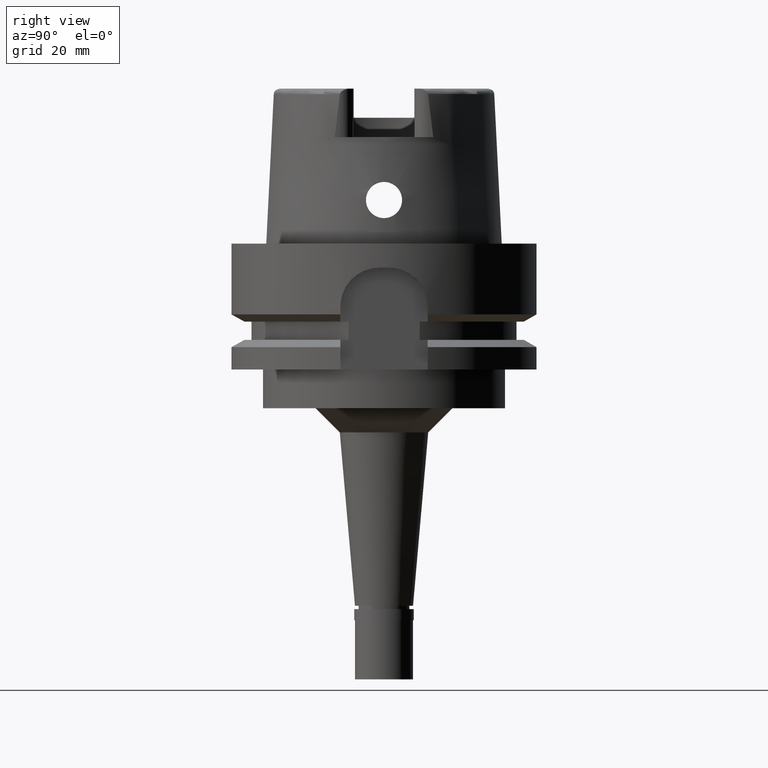
[diagram: clean part render]
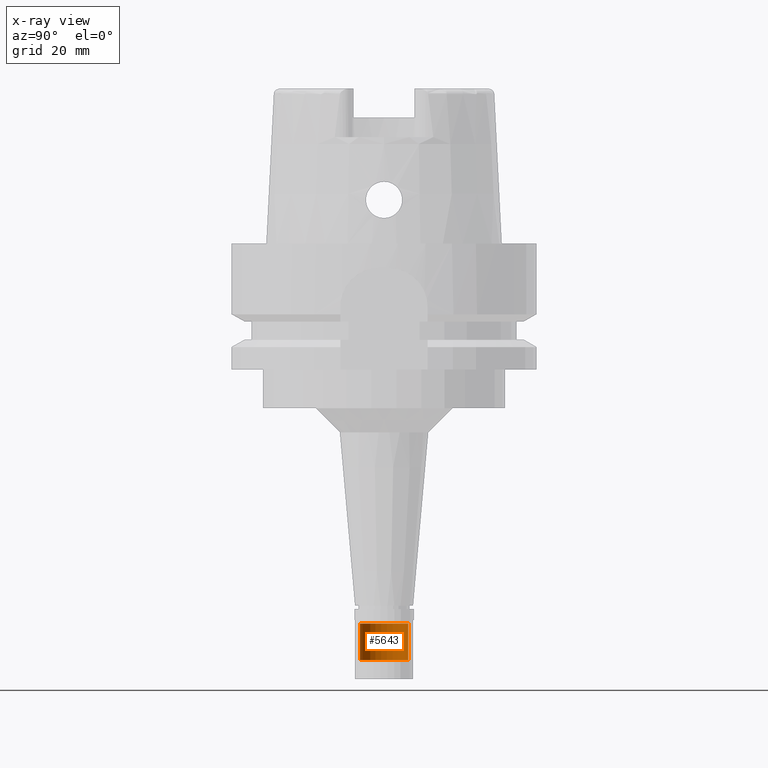
[diagram: x-ray — body ghosted, one internal face saturated and labeled with its STEP entity id]
A machine part, right view, then the same camera in x-ray: the body is ghosted and one INTERNAL B-rep face — a face not visible from any outside direction — is saturated and labeled: STEP entity #5643.
In plain terms, the highlighted cylindrical surface (edge-blend (fillet) strip) has radius 5 mm, axis along (0, 0, -1).
Its self-contained STEP definition (entity closure, byte-faithful):
#121 = LINE ( 'NONE', #4561, #4628 ) ;
#191 = DIRECTION ( 'NONE',  ( 0.0000000000000000000, -1.000000000000000000, 0.0000000000000000000 ) ) ;
#549 = VERTEX_POINT ( 'NONE', #1638 ) ;
#579 = DIRECTION ( 'NONE',  ( 0.0000000000000000000, 0.0000000000000000000, -1.000000000000000000 ) ) ;
#635 = CARTESIAN_POINT ( 'NONE',  ( 0.0000000000000000000, -5.000000000000000000, -78.50000000000000000 ) ) ;
#954 = EDGE_CURVE ( 'NONE', #1801, #549, #121, .T. ) ;
#998 = CARTESIAN_POINT ( 'NONE',  ( 0.0000000000000000000, 1.688787936023999784E-14, 37.90000000000000568 ) ) ;
#1021 = DIRECTION ( 'NONE',  ( 0.0000000000000000000, 0.0000000000000000000, -1.000000000000000000 ) ) ;
#1040 = DIRECTION ( 'NONE',  ( 0.0000000000000000000, 1.000000000000000000, 0.0000000000000000000 ) ) ;
#1077 = FACE_OUTER_BOUND ( 'NONE', #1701, .T. ) ;
#1283 = CARTESIAN_POINT ( 'NONE',  ( 0.0000000000000000000, 5.000000000000000000, -78.50000000000000000 ) ) ;
#1394 = DIRECTION ( 'NONE',  ( 0.0000000000000000000, -1.000000000000000000, 0.0000000000000000000 ) ) ;
#1413 = AXIS2_PLACEMENT_3D ( 'NONE', #2750, #579, #191 ) ;
#1493 = VECTOR ( 'NONE', #4359, 1000.000000000000000 ) ;
#1638 = CARTESIAN_POINT ( 'NONE',  ( 0.0000000000000000000, 5.000000000000000000, -86.00000000000000000 ) ) ;
#1701 = EDGE_LOOP ( 'NONE', ( #5004, #4616, #2083, #3557 ) ) ;
#1801 = VERTEX_POINT ( 'NONE', #1283 ) ;
#1902 = DIRECTION ( 'NONE',  ( 0.0000000000000000000, 0.0000000000000000000, -1.000000000000000000 ) ) ;
#2083 = ORIENTED_EDGE ( 'NONE', *, *, #2793, .T. ) ;
#2750 = CARTESIAN_POINT ( 'NONE',  ( 0.0000000000000000000, 1.688787936023999784E-14, -78.50000000000000000 ) ) ;
#2761 = EDGE_CURVE ( 'NONE', #549, #4310, #3879, .T. ) ;
#2793 = EDGE_CURVE ( 'NONE', #2983, #1801, #5605, .T. ) ;
#2957 = AXIS2_PLACEMENT_3D ( 'NONE', #4844, #3982, #1040 ) ;
#2983 = VERTEX_POINT ( 'NONE', #635 ) ;
#3557 = ORIENTED_EDGE ( 'NONE', *, *, #954, .T. ) ;
#3704 = EDGE_CURVE ( 'NONE', #2983, #4310, #3907, .T. ) ;
#3879 = CIRCLE ( 'NONE', #2957, 5.000000000000000000 ) ;
#3907 = LINE ( 'NONE', #5258, #1493 ) ;
#3982 = DIRECTION ( 'NONE',  ( 0.0000000000000000000, 0.0000000000000000000, 1.000000000000000000 ) ) ;
#4131 = AXIS2_PLACEMENT_3D ( 'NONE', #998, #1021, #1394 ) ;
#4310 = VERTEX_POINT ( 'NONE', #5447 ) ;
#4359 = DIRECTION ( 'NONE',  ( 0.0000000000000000000, 0.0000000000000000000, -1.000000000000000000 ) ) ;
#4561 = CARTESIAN_POINT ( 'NONE',  ( 0.0000000000000000000, 5.000000000000000000, -78.50000000000000000 ) ) ;
#4616 = ORIENTED_EDGE ( 'NONE', *, *, #3704, .F. ) ;
#4628 = VECTOR ( 'NONE', #1902, 1000.000000000000000 ) ;
#4844 = CARTESIAN_POINT ( 'NONE',  ( 0.0000000000000000000, 1.688787936023999784E-14, -86.00000000000000000 ) ) ;
#5004 = ORIENTED_EDGE ( 'NONE', *, *, #2761, .T. ) ;
#5258 = CARTESIAN_POINT ( 'NONE',  ( 0.0000000000000000000, -5.000000000000000000, -78.50000000000000000 ) ) ;
#5314 = CYLINDRICAL_SURFACE ( 'NONE', #4131, 5.000000000000000000 ) ;
#5447 = CARTESIAN_POINT ( 'NONE',  ( 0.0000000000000000000, -5.000000000000000000, -86.00000000000000000 ) ) ;
#5605 = CIRCLE ( 'NONE', #1413, 5.000000000000000000 ) ;
#5643 = ADVANCED_FACE ( 'NONE', ( #1077 ), #5314, .T. ) ;